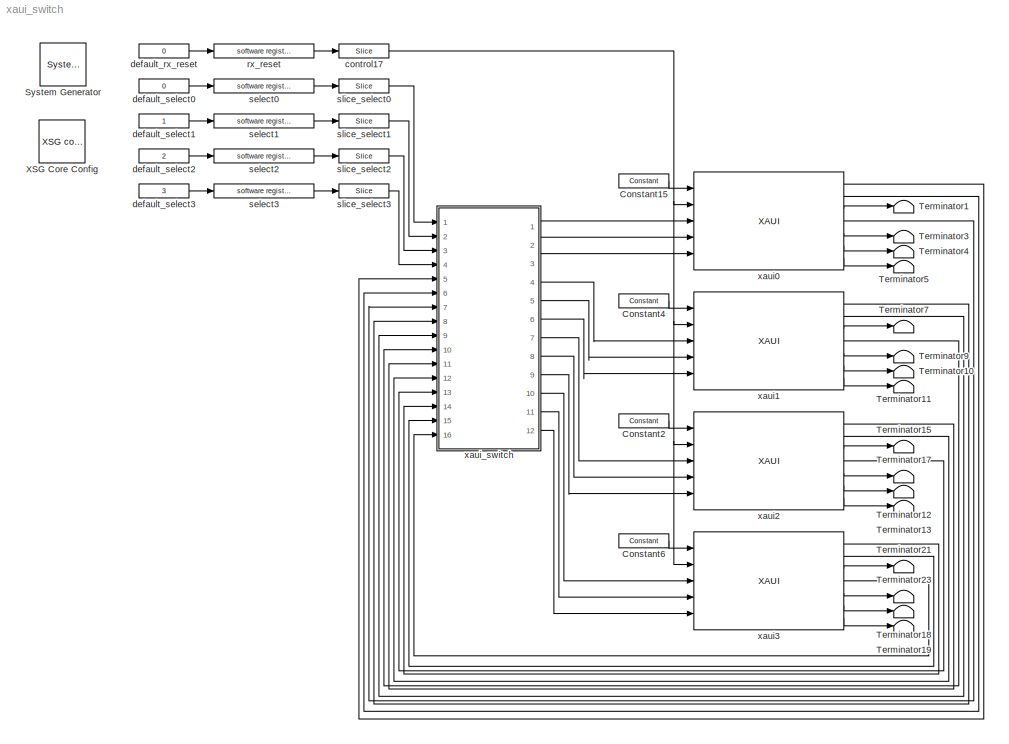
MODEL xaui_switch
KIND model
BLOCK [Reference]  System Generator  REF=xbsIndex_r4/ System Generator
  AttributesFormatString = System\\nGenerator
  FunctionWithSeparateData = off
  Ports = []
  RTWMemSecDataConstants = Inherit from model
  RTWMemSecDataInternal = Inherit from model
  RTWMemSecDataParameters = Inherit from model
  RTWMemSecFuncExecute = Inherit from model
  RTWMemSecFuncInitTerm = Inherit from model
  SID = 1
  ShowPortLabels = FromPortIcon
  SourceBlock = xbsIndex_r4/ System Generator
  SourceType = Xilinx System Generator Block
  SystemSampleTime = -1
  Tag = genX
  UserData = DataTag0
  UserDataPersistent = on
  block_type = sysgen
  block_version = 10.1.1
  clock_wrapper = Clock Enables
  core_generation = According to Block Masks
  dbl_ovrd = According to Block Masks
  dcm_input_clock_period = 100
  deprecated_control = off
  directory = ./xaui_loop/sysgen
  eval_field = 0
  has_advanced_control = 0
  incr_netlist = off
  infoedit = System Generator
  package = ff1136
  part = xc5vsx95t
  run_coregen = off
  sg_icon_stat = 46,43,-1,-1,red,beige,0,07734,right
  sg_mask_display = fprintf('','COMMENT: begin icon graphics');\npatch([0 46 46 0 ],[0 0 43 43 ],[0.93 0.92 0.86]);\npatch([11 4 14 4 11 22 25 28 40 30 21 14 23 14 21 30 40 28 25 22 11 ],[5 12 22 32 39 39 36 39 39 29 38 31 22 13 6 15 5 5 8 5 5 ],[0.6 0.2 0.25]);\nplot([0 46 46 0 0 ],[0 0 43 43 0 ]);\nfprintf('','COMMENT: end icon graphics');\nfprintf('','COMMENT: begin icon text');\nfprintf('','COMMENT: end icon text...<+5ch>
  sggui_pos = -1,-1,-1,-1
  simulink_period = 1
  speed = -1
  synthesis_tool = XST
  sysclk_period = 5
  testbench = off
  trim_vbits = Everywhere in SubSystem
  xilinxfamily = virtex5
BLOCK [Reference] Constant15  REF=xbsIndex_r4/Constant
  Ports = [0, 1]
  SID = 4
  SourceBlock = xbsIndex_r4/Constant
  SourceType = Xilinx Constant Block Block
  arith_type = Boolean
  bin_pt = 0
  block_type = constant
  block_version = 10.1.1
  carry = CIN
  const = 1
  dbl_ovrd = off
  dsp48_infoedit = The use of this block for DSP48 instructions is deprecated.  Please use the Opmode block.
  equ = P=C
  explicit_period = on
  has_advanced_control = 0
  inp1 = P
  inp2 = PCIN>>17
  n_bits = 1
  opr = +
  opselect = C
  period = 1
  sg_icon_stat = 50,14,0,1,white,blue,0,1c72b5be,right,
  sg_mask_display = fprintf('','COMMENT: begin icon graphics');\npatch([0 1 1 0 ],[0 0 1 1 ],[0.77 0.82 0.91]);\npatch([0.42 0.38 0.44 0.38 0.42 0.5 0.52 0.54 0.62 0.56 0.5 0.46 0.52 0.46 0.5 0.56 0.62 0.54 0.52 0.5 0.42 ],[0.142857 0.285714 0.5 0.714286 0.857143 0.857143 0.785714 0.857143 0.857143 0.642857 0.857143 0.714286 0.5 0.285714 0.142857 0.357143 0.142857 0.142857 0.214286 0.142857 0.142857 ],[0.98 0.96 0.92...<+206ch>  <repeated x4 — deduplicated; at blocks: Constant15, Constant2, Constant4, Constant6>
  sggui_pos = 20,20,400,346
BLOCK [Reference] Constant2  REF=xbsIndex_r4/Constant
  Ports = [0, 1]
  SID = 5
  SourceBlock = xbsIndex_r4/Constant
  SourceType = Xilinx Constant Block Block
  arith_type = Boolean
  bin_pt = 0
  block_type = constant
  block_version = 10.1.1
  carry = CIN
  const = 1
  dbl_ovrd = off
  dsp48_infoedit = The use of this block for DSP48 instructions is deprecated.  Please use the Opmode block.
  equ = P=C
  explicit_period = on
  has_advanced_control = 0
  inp1 = P
  inp2 = PCIN>>17
  n_bits = 1
  opr = +
  opselect = C
  period = 1
  sg_icon_stat = 50,14,0,1,white,blue,0,1c72b5be,right,
  sggui_pos = 20,20,400,346
BLOCK [Reference] Constant4  REF=xbsIndex_r4/Constant
  Ports = [0, 1]
  SID = 7
  SourceBlock = xbsIndex_r4/Constant
  SourceType = Xilinx Constant Block Block
  arith_type = Boolean
  bin_pt = 0
  block_type = constant
  block_version = 10.1.1
  carry = CIN
  const = 1
  dbl_ovrd = off
  dsp48_infoedit = The use of this block for DSP48 instructions is deprecated.  Please use the Opmode block.
  equ = P=C
  explicit_period = on
  has_advanced_control = 0
  inp1 = P
  inp2 = PCIN>>17
  n_bits = 1
  opr = +
  opselect = C
  period = 1
  sg_icon_stat = 50,14,0,1,white,blue,0,1c72b5be,right,
  sggui_pos = 20,20,400,346
BLOCK [Reference] Constant6  REF=xbsIndex_r4/Constant
  Ports = [0, 1]
  SID = 9
  SourceBlock = xbsIndex_r4/Constant
  SourceType = Xilinx Constant Block Block
  arith_type = Boolean
  bin_pt = 0
  block_type = constant
  block_version = 10.1.1
  carry = CIN
  const = 1
  dbl_ovrd = off
  dsp48_infoedit = The use of this block for DSP48 instructions is deprecated.  Please use the Opmode block.
  equ = P=C
  explicit_period = on
  has_advanced_control = 0
  inp1 = P
  inp2 = PCIN>>17
  n_bits = 1
  opr = +
  opselect = C
  period = 1
  sg_icon_stat = 50,14,0,1,white,blue,0,1c72b5be,right,
  sggui_pos = 20,20,400,346
BLOCK [Terminator] Terminator1
  SID = 39
BLOCK [Terminator] Terminator10
  SID = 40
BLOCK [Terminator] Terminator11
  SID = 41
BLOCK [Terminator] Terminator12
  SID = 42
BLOCK [Terminator] Terminator13
  SID = 43
BLOCK [Terminator] Terminator15
  SID = 45
BLOCK [Terminator] Terminator17
  SID = 47
BLOCK [Terminator] Terminator18
  SID = 48
BLOCK [Terminator] Terminator19
  SID = 49
BLOCK [Terminator] Terminator21
  SID = 52
BLOCK [Terminator] Terminator23
  SID = 54
BLOCK [Terminator] Terminator3
  SID = 55
BLOCK [Terminator] Terminator4
  SID = 56
BLOCK [Terminator] Terminator5
  SID = 57
BLOCK [Terminator] Terminator7
  SID = 59
BLOCK [Terminator] Terminator9
  SID = 61
BLOCK [Reference] XSG Core Config  REF=xps_library/XSG core config  (lib defined in mdl_00b5cec29cd0, mdl_02ab6ecaa3d1, +5 more)
  BEE2_ctrl_clk_src = sys_clk
  BEE2_usr_clk_src = sys_clk2x
  CORR_clk_src = sys_clk
  FunctionWithSeparateData = off
  Ports = []
  ROACH_clk_src = sys_clk2x
  RTWMemSecDataConstants = Inherit from model
  RTWMemSecDataInternal = Inherit from model
  RTWMemSecDataParameters = Inherit from model
  RTWMemSecFuncExecute = Inherit from model
  RTWMemSecFuncInitTerm = Inherit from model
  SID = 62
  ShowPortLabels = FromPortIcon
  SourceBlock = xps_library/XSG core config
  SourceType = xsg core config
  SystemSampleTime = -1
  Tag = xps:xsg
  clk_rate = 200
  clk_src = sys_clk2x
  gpio_clk_bit_index = 0
  gpio_clk_io_group = iBOB:sma
  hw_sys = ROACH:sx95t
  iBOB_clk_src = sys_clk2x
  ibob_linux = off
  mpc_type = powerpc440_ext
  sample_period = 1
  synthesis_tool = XST
BLOCK [Reference] control17  REF=xbsIndex_r4/Slice
  Ports = [1, 1]
  SID = 63
  SourceBlock = xbsIndex_r4/Slice
  SourceType = Xilinx Bit Slice Extractor Block
  base0 = LSB of Input
  base1 = MSB of Input
  bit0 = 0
  bit1 = 0
  block_type = slice
  block_version = 10.1.3
  boolean_output = on
  dbl_ovrd = off
  has_advanced_control = 0
  infoedit = Extracts a given range of bits from each input sample and presents it at the output.  The output type is ordinarily unsigned with binary point at zero, but can be Boolean when the slice is one bit wide.<P><P>Hardware notes: In hardware this block costs nothing.
  mode = Lower Bit Location + Width
  nbits = 1
  sg_icon_stat = 50,14,1,1,white,blue,0,1fd851a7,right,
  sg_mask_display = fprintf('','COMMENT: begin icon graphics');\npatch([0 1 1 0 ],[0 0 1 1 ],[0.77 0.82 0.91]);\npatch([0.42 0.38 0.44 0.38 0.42 0.5 0.52 0.54 0.62 0.56 0.5 0.46 0.52 0.46 0.5 0.56 0.62 0.54 0.52 0.5 0.42 ],[0.142857 0.285714 0.5 0.714286 0.857143 0.857143 0.785714 0.857143 0.857143 0.642857 0.857143 0.714286 0.5 0.285714 0.142857 0.357143 0.142857 0.142857 0.214286 0.142857 0.142857 ],[0.98 0.96 0.92...<+210ch>  <repeated x5 — deduplicated; at blocks: control17, slice_select0, slice_select1, slice_select2, slice_select3>
  sggui_pos = 20,20,449,376
BLOCK [Constant] default_rx_reset
  OutDataType = sfix(16)
  OutScaling = 2^0
  SID = 64
  SampleTime = 1
  Value = 0
BLOCK [Constant] default_select0
  OutDataType = sfix(16)
  OutScaling = 2^0
  SID = 270
  SampleTime = 1
  Value = 0
BLOCK [Constant] default_select1
  OutDataType = sfix(16)
  OutScaling = 2^0
  SID = 272
  SampleTime = 1
BLOCK [Constant] default_select2
  OutDataType = sfix(16)
  OutScaling = 2^0
  SID = 275
  SampleTime = 1
  Value = 2
BLOCK [Constant] default_select3
  OutDataType = sfix(16)
  OutScaling = 2^0
  SID = 276
  SampleTime = 1
  Value = 3
BLOCK [Reference] rx_reset  REF=xps_library/software register  (lib defined in mdl_00b5cec29cd0, mdl_02ab6ecaa3d1, +5 more)
  FunctionWithSeparateData = off
  Ports = [1, 1]
  RTWMemSecDataConstants = Inherit from model
  RTWMemSecDataInternal = Inherit from model
  RTWMemSecDataParameters = Inherit from model
  RTWMemSecFuncExecute = Inherit from model
  RTWMemSecFuncInitTerm = Inherit from model
  SID = 69
  ShowPortLabels = FromPortIcon
  SourceBlock = xps_library/software register
  SystemSampleTime = -1
  Tag = xps:sw_reg
  arith_type = Unsigned
  bin_pt = 0
  bitwidth = 32
  gw_name = xaui_switch_rx_reset_user_data_out
  io_dir = From Processor
  sample_period = 1
BLOCK [Reference] select0  REF=xps_library/software register  (lib defined in mdl_00b5cec29cd0, mdl_02ab6ecaa3d1, +5 more)
  FunctionWithSeparateData = off
  Ports = [1, 1]
  RTWMemSecDataConstants = Inherit from model
  RTWMemSecDataInternal = Inherit from model
  RTWMemSecDataParameters = Inherit from model
  RTWMemSecFuncExecute = Inherit from model
  RTWMemSecFuncInitTerm = Inherit from model
  SID = 271
  ShowPortLabels = FromPortIcon
  SourceBlock = xps_library/software register
  SystemSampleTime = -1
  Tag = xps:sw_reg
  arith_type = Unsigned
  bin_pt = 0
  bitwidth = 32
  gw_name = xaui_switch_rx_reset_user_data_out
  io_dir = From Processor
  sample_period = 1
BLOCK [Reference] select1  REF=xps_library/software register  (lib defined in mdl_00b5cec29cd0, mdl_02ab6ecaa3d1, +5 more)
  FunctionWithSeparateData = off
  Ports = [1, 1]
  RTWMemSecDataConstants = Inherit from model
  RTWMemSecDataInternal = Inherit from model
  RTWMemSecDataParameters = Inherit from model
  RTWMemSecFuncExecute = Inherit from model
  RTWMemSecFuncInitTerm = Inherit from model
  SID = 273
  ShowPortLabels = FromPortIcon
  SourceBlock = xps_library/software register
  SystemSampleTime = -1
  Tag = xps:sw_reg
  arith_type = Unsigned
  bin_pt = 0
  bitwidth = 32
  gw_name = xaui_switch_rx_reset_user_data_out
  io_dir = From Processor
  sample_period = 1
BLOCK [Reference] select2  REF=xps_library/software register  (lib defined in mdl_00b5cec29cd0, mdl_02ab6ecaa3d1, +5 more)
  FunctionWithSeparateData = off
  Ports = [1, 1]
  RTWMemSecDataConstants = Inherit from model
  RTWMemSecDataInternal = Inherit from model
  RTWMemSecDataParameters = Inherit from model
  RTWMemSecFuncExecute = Inherit from model
  RTWMemSecFuncInitTerm = Inherit from model
  SID = 277
  ShowPortLabels = FromPortIcon
  SourceBlock = xps_library/software register
  SystemSampleTime = -1
  Tag = xps:sw_reg
  arith_type = Unsigned
  bin_pt = 0
  bitwidth = 32
  gw_name = xaui_switch_rx_reset_user_data_out
  io_dir = From Processor
  sample_period = 1
BLOCK [Reference] select3  REF=xps_library/software register  (lib defined in mdl_00b5cec29cd0, mdl_02ab6ecaa3d1, +5 more)
  FunctionWithSeparateData = off
  Ports = [1, 1]
  RTWMemSecDataConstants = Inherit from model
  RTWMemSecDataInternal = Inherit from model
  RTWMemSecDataParameters = Inherit from model
  RTWMemSecFuncExecute = Inherit from model
  RTWMemSecFuncInitTerm = Inherit from model
  SID = 278
  ShowPortLabels = FromPortIcon
  SourceBlock = xps_library/software register
  SystemSampleTime = -1
  Tag = xps:sw_reg
  arith_type = Unsigned
  bin_pt = 0
  bitwidth = 32
  gw_name = xaui_switch_rx_reset_user_data_out
  io_dir = From Processor
  sample_period = 1
BLOCK [Reference] slice_select0  REF=xbsIndex_r4/Slice
  Ports = [1, 1]
  SID = 269
  SourceBlock = xbsIndex_r4/Slice
  SourceType = Xilinx Bit Slice Extractor Block
  base0 = LSB of Input
  base1 = MSB of Input
  bit0 = 0
  bit1 = 0
  block_type = slice
  block_version = 10.1.3
  boolean_output = off
  dbl_ovrd = off
  has_advanced_control = 0
  infoedit = Extracts a given range of bits from each input sample and presents it at the output.  The output type is ordinarily unsigned with binary point at zero, but can be Boolean when the slice is one bit wide.<br><br>Hardware notes: In hardware this block costs nothing.  <repeated x4 — deduplicated; at blocks: slice_select0, slice_select1, slice_select2, slice_select3>
  mode = Lower Bit Location + Width
  nbits = 2
  sg_icon_stat = 50,14,1,1,white,blue,0,1fd851a7,right,
  sggui_pos = 20,20,449,376
BLOCK [Reference] slice_select1  REF=xbsIndex_r4/Slice
  Ports = [1, 1]
  SID = 274
  SourceBlock = xbsIndex_r4/Slice
  SourceType = Xilinx Bit Slice Extractor Block
  base0 = LSB of Input
  base1 = MSB of Input
  bit0 = 0
  bit1 = 0
  block_type = slice
  block_version = 10.1.3
  boolean_output = off
  dbl_ovrd = off
  has_advanced_control = 0
  mode = Lower Bit Location + Width
  nbits = 2
  sg_icon_stat = 50,14,1,1,white,blue,0,1fd851a7,right,
  sggui_pos = 20,20,449,376
BLOCK [Reference] slice_select2  REF=xbsIndex_r4/Slice
  Ports = [1, 1]
  SID = 279
  SourceBlock = xbsIndex_r4/Slice
  SourceType = Xilinx Bit Slice Extractor Block
  base0 = LSB of Input
  base1 = MSB of Input
  bit0 = 0
  bit1 = 0
  block_type = slice
  block_version = 10.1.3
  boolean_output = off
  dbl_ovrd = off
  has_advanced_control = 0
  mode = Lower Bit Location + Width
  nbits = 2
  sg_icon_stat = 50,14,1,1,white,blue,0,1fd851a7,right,
  sggui_pos = 20,20,449,376
BLOCK [Reference] slice_select3  REF=xbsIndex_r4/Slice
  Ports = [1, 1]
  SID = 280
  SourceBlock = xbsIndex_r4/Slice
  SourceType = Xilinx Bit Slice Extractor Block
  base0 = LSB of Input
  base1 = MSB of Input
  bit0 = 0
  bit1 = 0
  block_type = slice
  block_version = 10.1.3
  boolean_output = off
  dbl_ovrd = off
  has_advanced_control = 0
  mode = Lower Bit Location + Width
  nbits = 2
  sg_icon_stat = 50,14,1,1,white,blue,0,1fd851a7,right,
  sggui_pos = 20,20,449,376
BLOCK [Reference] xaui0  REF=xps_library/XAUI  (lib defined in mdl_00b5cec29cd0, mdl_02ab6ecaa3d1, +5 more)
  FunctionWithSeparateData = off
  Ports = [5, 7]
  RTWMemSecDataConstants = Inherit from model
  RTWMemSecDataInternal = Inherit from model
  RTWMemSecDataParameters = Inherit from model
  RTWMemSecFuncExecute = Inherit from model
  RTWMemSecFuncInitTerm = Inherit from model
  SID = 70
  ShowPortLabels = FromPortIcon
  SourceBlock = xps_library/XAUI
  SourceType = xaui
  SystemSampleTime = -1
  Tag = xps:xaui
  demux = 1
  open_phy = on
  port = ROACH:0
  pre_emph = 3
  show_param = off
  swing = 800
BLOCK [Reference] xaui1  REF=xps_library/XAUI  (lib defined in mdl_00b5cec29cd0, mdl_02ab6ecaa3d1, +5 more)
  FunctionWithSeparateData = off
  Ports = [5, 7]
  RTWMemSecDataConstants = Inherit from model
  RTWMemSecDataInternal = Inherit from model
  RTWMemSecDataParameters = Inherit from model
  RTWMemSecFuncExecute = Inherit from model
  RTWMemSecFuncInitTerm = Inherit from model
  SID = 71
  ShowPortLabels = FromPortIcon
  SourceBlock = xps_library/XAUI
  SourceType = xaui
  SystemSampleTime = -1
  Tag = xps:xaui
  demux = 1
  open_phy = on
  port = ROACH:1
  pre_emph = 3
  show_param = off
  swing = 800
BLOCK [Reference] xaui2  REF=xps_library/XAUI  (lib defined in mdl_00b5cec29cd0, mdl_02ab6ecaa3d1, +5 more)
  FunctionWithSeparateData = off
  Ports = [5, 7]
  RTWMemSecDataConstants = Inherit from model
  RTWMemSecDataInternal = Inherit from model
  RTWMemSecDataParameters = Inherit from model
  RTWMemSecFuncExecute = Inherit from model
  RTWMemSecFuncInitTerm = Inherit from model
  SID = 72
  ShowPortLabels = FromPortIcon
  SourceBlock = xps_library/XAUI
  SourceType = xaui
  SystemSampleTime = -1
  Tag = xps:xaui
  demux = 1
  open_phy = on
  port = ROACH:2
  pre_emph = 3
  show_param = off
  swing = 800
BLOCK [Reference] xaui3  REF=xps_library/XAUI  (lib defined in mdl_00b5cec29cd0, mdl_02ab6ecaa3d1, +5 more)
  FunctionWithSeparateData = off
  Ports = [5, 7]
  RTWMemSecDataConstants = Inherit from model
  RTWMemSecDataInternal = Inherit from model
  RTWMemSecDataParameters = Inherit from model
  RTWMemSecFuncExecute = Inherit from model
  RTWMemSecFuncInitTerm = Inherit from model
  SID = 73
  ShowPortLabels = FromPortIcon
  SourceBlock = xps_library/XAUI
  SourceType = xaui
  SystemSampleTime = -1
  Tag = xps:xaui
  demux = 1
  open_phy = on
  port = ROACH:3
  pre_emph = 3
  show_param = off
  swing = 800
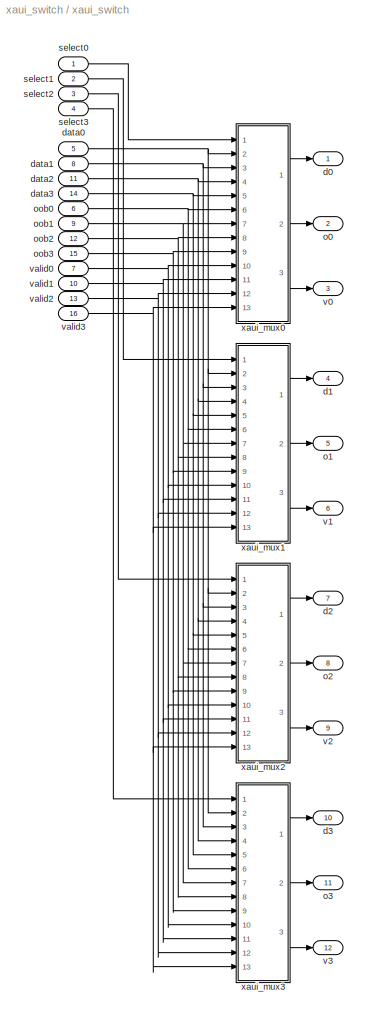
BLOCK [SubSystem] xaui_switch
  FunctionWithSeparateData = off
  MaskHideContents = off
  MinAlgLoopOccurrences = off
  Opaque = off
  Ports = [16, 12]
  PropExecContextOutsideSubsystem = off
  RTWSystemCode = Auto
  RequestExecContextInheritance = off
  SID = 282
BLOCK [Outport] xaui_switch/d0
  IconDisplay = Port number
  SID = 379
BLOCK [Outport] xaui_switch/d1
  IconDisplay = Port number
  Port = 4
  SID = 382
BLOCK [Outport] xaui_switch/d2
  IconDisplay = Port number
  Port = 7
  SID = 385
BLOCK [Outport] xaui_switch/d3
  IconDisplay = Port number
  Port = 10
  SID = 388
BLOCK [Inport] xaui_switch/data0
  IconDisplay = Port number
  Port = 5
  SID = 391
BLOCK [Inport] xaui_switch/data1
  IconDisplay = Port number
  Port = 8
  SID = 394
BLOCK [Inport] xaui_switch/data2
  IconDisplay = Port number
  Port = 11
  SID = 397
BLOCK [Inport] xaui_switch/data3
  IconDisplay = Port number
  Port = 14
  SID = 400
BLOCK [Outport] xaui_switch/o0
  IconDisplay = Port number
  Port = 2
  SID = 380
BLOCK [Outport] xaui_switch/o1
  IconDisplay = Port number
  Port = 5
  SID = 383
BLOCK [Outport] xaui_switch/o2
  IconDisplay = Port number
  Port = 8
  SID = 386
BLOCK [Outport] xaui_switch/o3
  IconDisplay = Port number
  Port = 11
  SID = 389
BLOCK [Inport] xaui_switch/oob0
  IconDisplay = Port number
  Port = 6
  SID = 392
BLOCK [Inport] xaui_switch/oob1
  IconDisplay = Port number
  Port = 9
  SID = 395
BLOCK [Inport] xaui_switch/oob2
  IconDisplay = Port number
  Port = 12
  SID = 398
BLOCK [Inport] xaui_switch/oob3
  IconDisplay = Port number
  Port = 15
  SID = 401
BLOCK [Inport] xaui_switch/select0
  IconDisplay = Port number
  SID = 283
BLOCK [Inport] xaui_switch/select1
  IconDisplay = Port number
  Port = 2
  SID = 284
BLOCK [Inport] xaui_switch/select2
  IconDisplay = Port number
  Port = 3
  SID = 285
BLOCK [Inport] xaui_switch/select3
  IconDisplay = Port number
  Port = 4
  SID = 286
BLOCK [Outport] xaui_switch/v0
  IconDisplay = Port number
  Port = 3
  SID = 381
BLOCK [Outport] xaui_switch/v1
  IconDisplay = Port number
  Port = 6
  SID = 384
BLOCK [Outport] xaui_switch/v2
  IconDisplay = Port number
  Port = 9
  SID = 387
BLOCK [Outport] xaui_switch/v3
  IconDisplay = Port number
  Port = 12
  SID = 390
BLOCK [Inport] xaui_switch/valid0
  IconDisplay = Port number
  Port = 7
  SID = 393
BLOCK [Inport] xaui_switch/valid1
  IconDisplay = Port number
  Port = 10
  SID = 396
BLOCK [Inport] xaui_switch/valid2
  IconDisplay = Port number
  Port = 13
  SID = 399
BLOCK [Inport] xaui_switch/valid3
  IconDisplay = Port number
  Port = 16
  SID = 402
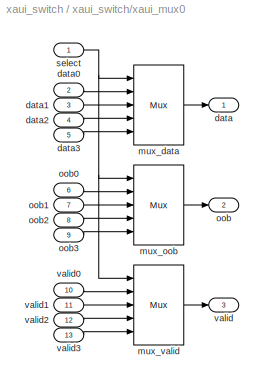
BLOCK [SubSystem] xaui_switch/xaui_mux0
  FunctionWithSeparateData = off
  MaskHideContents = off
  MinAlgLoopOccurrences = off
  Opaque = off
  Ports = [13, 3]
  PropExecContextOutsideSubsystem = off
  RTWSystemCode = Auto
  RequestExecContextInheritance = off
  SID = 299
BLOCK [Outport] xaui_switch/xaui_mux0/data
  IconDisplay = Port number
  SID = 316
BLOCK [Inport] xaui_switch/xaui_mux0/data0
  IconDisplay = Port number
  Port = 2
  SID = 301
BLOCK [Inport] xaui_switch/xaui_mux0/data1
  IconDisplay = Port number
  Port = 3
  SID = 302
BLOCK [Inport] xaui_switch/xaui_mux0/data2
  IconDisplay = Port number
  Port = 4
  SID = 303
BLOCK [Inport] xaui_switch/xaui_mux0/data3
  IconDisplay = Port number
  Port = 5
  SID = 304
BLOCK [Reference] xaui_switch/xaui_mux0/mux_data  REF=xbsIndex_r4/Mux
  Ports = [5, 1]
  SID = 313
  SourceBlock = xbsIndex_r4/Mux
  SourceType = Xilinx Bus Multiplexer Block
  arith_type = Unsigned
  bin_pt = 14
  block_type = mux
  block_version = 11.4
  dbl_ovrd = off
  en = off
  has_advanced_control = 0
  inputs = 4
  latency = 3
  n_bits = 16
  overflow = Wrap
  precision = Full
  quantization = Truncate
  sg_icon_stat = 50,80,5,1,white,blue,3,641f70b6,right,
  sg_list_contents = {'table'=>{'inputs'=>'popup(2|3|4|5|6|7|8|9|10|11|12|13|14|15|16|17|18|19|20|21|22|23|24|25|26|27|28|29|30|31|32)','userSelections'=>{'inputs'=>'4'}}}
  sg_mask_display = fprintf('','COMMENT: begin icon graphics');\npatch([0 1 1 0 ],[0 0.142857 0.857143 1 ],[0.77 0.82 0.91]);\npatch([0.22 0.06 0.3 0.06 0.22 0.48 0.56 0.64 0.92 0.7 0.48 0.32 0.56 0.32 0.48 0.7 0.92 0.64 0.56 0.48 0.22 ],[0.25 0.35 0.5 0.65 0.75 0.75 0.7 0.75 0.75 0.6125 0.75 0.65 0.5 0.35 0.25 0.3875 0.25 0.25 0.3 0.25 0.25 ],[0.98 0.96 0.92]);\nplot([0 1 1 0 0 ],[0 0.142857 0.857143 1 0 ]);\nfprint...<+393ch>  <repeated x12 — deduplicated; at blocks: mux_data, mux_oob, mux_valid>
  sggui_pos = -1,-1,-1,-1
  xl_area = [0,0,0,0,0,0,0]
  xl_use_area = off
BLOCK [Reference] xaui_switch/xaui_mux0/mux_oob  REF=xbsIndex_r4/Mux
  Ports = [5, 1]
  SID = 314
  SourceBlock = xbsIndex_r4/Mux
  SourceType = Xilinx Bus Multiplexer Block
  arith_type = Unsigned
  bin_pt = 14
  block_type = mux
  block_version = 11.4
  dbl_ovrd = off
  en = off
  has_advanced_control = 0
  inputs = 4
  latency = 3
  n_bits = 16
  overflow = Wrap
  precision = Full
  quantization = Truncate
  sg_icon_stat = 50,80,5,1,white,blue,3,641f70b6,right,
  sg_list_contents = {'table'=>{'inputs'=>'popup(2|3|4|5|6|7|8|9|10|11|12|13|14|15|16|17|18|19|20|21|22|23|24|25|26|27|28|29|30|31|32)','userSelections'=>{'inputs'=>'4'}}}
  sggui_pos = -1,-1,-1,-1
  xl_area = [0,0,0,0,0,0,0]
  xl_use_area = off
BLOCK [Reference] xaui_switch/xaui_mux0/mux_valid  REF=xbsIndex_r4/Mux
  Ports = [5, 1]
  SID = 315
  SourceBlock = xbsIndex_r4/Mux
  SourceType = Xilinx Bus Multiplexer Block
  arith_type = Unsigned
  bin_pt = 14
  block_type = mux
  block_version = 11.4
  dbl_ovrd = off
  en = off
  has_advanced_control = 0
  inputs = 4
  latency = 3
  n_bits = 16
  overflow = Wrap
  precision = Full
  quantization = Truncate
  sg_icon_stat = 50,80,5,1,white,blue,3,641f70b6,right,
  sg_list_contents = {'table'=>{'inputs'=>'popup(2|3|4|5|6|7|8|9|10|11|12|13|14|15|16|17|18|19|20|21|22|23|24|25|26|27|28|29|30|31|32)','userSelections'=>{'inputs'=>'4'}}}
  sggui_pos = -1,-1,-1,-1
  xl_area = [0,0,0,0,0,0,0]
  xl_use_area = off
BLOCK [Outport] xaui_switch/xaui_mux0/oob
  IconDisplay = Port number
  Port = 2
  SID = 317
BLOCK [Inport] xaui_switch/xaui_mux0/oob0
  IconDisplay = Port number
  Port = 6
  SID = 305
BLOCK [Inport] xaui_switch/xaui_mux0/oob1
  IconDisplay = Port number
  Port = 7
  SID = 306
BLOCK [Inport] xaui_switch/xaui_mux0/oob2
  IconDisplay = Port number
  Port = 8
  SID = 307
BLOCK [Inport] xaui_switch/xaui_mux0/oob3
  IconDisplay = Port number
  Port = 9
  SID = 308
BLOCK [Inport] xaui_switch/xaui_mux0/select
  IconDisplay = Port number
  SID = 300
BLOCK [Outport] xaui_switch/xaui_mux0/valid
  IconDisplay = Port number
  Port = 3
  SID = 318
BLOCK [Inport] xaui_switch/xaui_mux0/valid0
  IconDisplay = Port number
  Port = 10
  SID = 309
BLOCK [Inport] xaui_switch/xaui_mux0/valid1
  IconDisplay = Port number
  Port = 11
  SID = 310
BLOCK [Inport] xaui_switch/xaui_mux0/valid2
  IconDisplay = Port number
  Port = 12
  SID = 311
BLOCK [Inport] xaui_switch/xaui_mux0/valid3
  IconDisplay = Port number
  Port = 13
  SID = 312
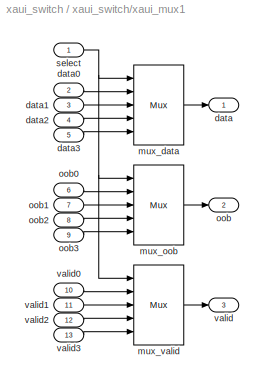
BLOCK [SubSystem] xaui_switch/xaui_mux1
  FunctionWithSeparateData = off
  MaskHideContents = off
  MinAlgLoopOccurrences = off
  Opaque = off
  Ports = [13, 3]
  PropExecContextOutsideSubsystem = off
  RTWSystemCode = Auto
  RequestExecContextInheritance = off
  SID = 319
BLOCK [Outport] xaui_switch/xaui_mux1/data
  IconDisplay = Port number
  SID = 336
BLOCK [Inport] xaui_switch/xaui_mux1/data0
  IconDisplay = Port number
  Port = 2
  SID = 321
BLOCK [Inport] xaui_switch/xaui_mux1/data1
  IconDisplay = Port number
  Port = 3
  SID = 322
BLOCK [Inport] xaui_switch/xaui_mux1/data2
  IconDisplay = Port number
  Port = 4
  SID = 323
BLOCK [Inport] xaui_switch/xaui_mux1/data3
  IconDisplay = Port number
  Port = 5
  SID = 324
BLOCK [Reference] xaui_switch/xaui_mux1/mux_data  REF=xbsIndex_r4/Mux
  Ports = [5, 1]
  SID = 333
  SourceBlock = xbsIndex_r4/Mux
  SourceType = Xilinx Bus Multiplexer Block
  arith_type = Unsigned
  bin_pt = 14
  block_type = mux
  block_version = 11.4
  dbl_ovrd = off
  en = off
  has_advanced_control = 0
  inputs = 4
  latency = 3
  n_bits = 16
  overflow = Wrap
  precision = Full
  quantization = Truncate
  sg_icon_stat = 50,80,5,1,white,blue,3,641f70b6,right,
  sg_list_contents = {'table'=>{'inputs'=>'popup(2|3|4|5|6|7|8|9|10|11|12|13|14|15|16|17|18|19|20|21|22|23|24|25|26|27|28|29|30|31|32)','userSelections'=>{'inputs'=>'4'}}}
  sggui_pos = -1,-1,-1,-1
  xl_area = [0,0,0,0,0,0,0]
  xl_use_area = off
BLOCK [Reference] xaui_switch/xaui_mux1/mux_oob  REF=xbsIndex_r4/Mux
  Ports = [5, 1]
  SID = 334
  SourceBlock = xbsIndex_r4/Mux
  SourceType = Xilinx Bus Multiplexer Block
  arith_type = Unsigned
  bin_pt = 14
  block_type = mux
  block_version = 11.4
  dbl_ovrd = off
  en = off
  has_advanced_control = 0
  inputs = 4
  latency = 3
  n_bits = 16
  overflow = Wrap
  precision = Full
  quantization = Truncate
  sg_icon_stat = 50,80,5,1,white,blue,3,641f70b6,right,
  sg_list_contents = {'table'=>{'inputs'=>'popup(2|3|4|5|6|7|8|9|10|11|12|13|14|15|16|17|18|19|20|21|22|23|24|25|26|27|28|29|30|31|32)','userSelections'=>{'inputs'=>'4'}}}
  sggui_pos = -1,-1,-1,-1
  xl_area = [0,0,0,0,0,0,0]
  xl_use_area = off
BLOCK [Reference] xaui_switch/xaui_mux1/mux_valid  REF=xbsIndex_r4/Mux
  Ports = [5, 1]
  SID = 335
  SourceBlock = xbsIndex_r4/Mux
  SourceType = Xilinx Bus Multiplexer Block
  arith_type = Unsigned
  bin_pt = 14
  block_type = mux
  block_version = 11.4
  dbl_ovrd = off
  en = off
  has_advanced_control = 0
  inputs = 4
  latency = 3
  n_bits = 16
  overflow = Wrap
  precision = Full
  quantization = Truncate
  sg_icon_stat = 50,80,5,1,white,blue,3,641f70b6,right,
  sg_list_contents = {'table'=>{'inputs'=>'popup(2|3|4|5|6|7|8|9|10|11|12|13|14|15|16|17|18|19|20|21|22|23|24|25|26|27|28|29|30|31|32)','userSelections'=>{'inputs'=>'4'}}}
  sggui_pos = -1,-1,-1,-1
  xl_area = [0,0,0,0,0,0,0]
  xl_use_area = off
BLOCK [Outport] xaui_switch/xaui_mux1/oob
  IconDisplay = Port number
  Port = 2
  SID = 337
BLOCK [Inport] xaui_switch/xaui_mux1/oob0
  IconDisplay = Port number
  Port = 6
  SID = 325
BLOCK [Inport] xaui_switch/xaui_mux1/oob1
  IconDisplay = Port number
  Port = 7
  SID = 326
BLOCK [Inport] xaui_switch/xaui_mux1/oob2
  IconDisplay = Port number
  Port = 8
  SID = 327
BLOCK [Inport] xaui_switch/xaui_mux1/oob3
  IconDisplay = Port number
  Port = 9
  SID = 328
BLOCK [Inport] xaui_switch/xaui_mux1/select
  IconDisplay = Port number
  SID = 320
BLOCK [Outport] xaui_switch/xaui_mux1/valid
  IconDisplay = Port number
  Port = 3
  SID = 338
BLOCK [Inport] xaui_switch/xaui_mux1/valid0
  IconDisplay = Port number
  Port = 10
  SID = 329
BLOCK [Inport] xaui_switch/xaui_mux1/valid1
  IconDisplay = Port number
  Port = 11
  SID = 330
BLOCK [Inport] xaui_switch/xaui_mux1/valid2
  IconDisplay = Port number
  Port = 12
  SID = 331
BLOCK [Inport] xaui_switch/xaui_mux1/valid3
  IconDisplay = Port number
  Port = 13
  SID = 332
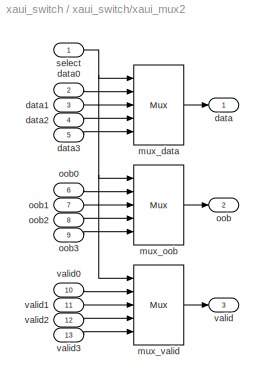
BLOCK [SubSystem] xaui_switch/xaui_mux2
  FunctionWithSeparateData = off
  MaskHideContents = off
  MinAlgLoopOccurrences = off
  Opaque = off
  Ports = [13, 3]
  PropExecContextOutsideSubsystem = off
  RTWSystemCode = Auto
  RequestExecContextInheritance = off
  SID = 339
BLOCK [Outport] xaui_switch/xaui_mux2/data
  IconDisplay = Port number
  SID = 356
BLOCK [Inport] xaui_switch/xaui_mux2/data0
  IconDisplay = Port number
  Port = 2
  SID = 341
BLOCK [Inport] xaui_switch/xaui_mux2/data1
  IconDisplay = Port number
  Port = 3
  SID = 342
BLOCK [Inport] xaui_switch/xaui_mux2/data2
  IconDisplay = Port number
  Port = 4
  SID = 343
BLOCK [Inport] xaui_switch/xaui_mux2/data3
  IconDisplay = Port number
  Port = 5
  SID = 344
BLOCK [Reference] xaui_switch/xaui_mux2/mux_data  REF=xbsIndex_r4/Mux
  Ports = [5, 1]
  SID = 353
  SourceBlock = xbsIndex_r4/Mux
  SourceType = Xilinx Bus Multiplexer Block
  arith_type = Unsigned
  bin_pt = 14
  block_type = mux
  block_version = 11.4
  dbl_ovrd = off
  en = off
  has_advanced_control = 0
  inputs = 4
  latency = 3
  n_bits = 16
  overflow = Wrap
  precision = Full
  quantization = Truncate
  sg_icon_stat = 50,80,5,1,white,blue,3,641f70b6,right,
  sg_list_contents = {'table'=>{'inputs'=>'popup(2|3|4|5|6|7|8|9|10|11|12|13|14|15|16|17|18|19|20|21|22|23|24|25|26|27|28|29|30|31|32)','userSelections'=>{'inputs'=>'4'}}}
  sggui_pos = -1,-1,-1,-1
  xl_area = [0,0,0,0,0,0,0]
  xl_use_area = off
BLOCK [Reference] xaui_switch/xaui_mux2/mux_oob  REF=xbsIndex_r4/Mux
  Ports = [5, 1]
  SID = 354
  SourceBlock = xbsIndex_r4/Mux
  SourceType = Xilinx Bus Multiplexer Block
  arith_type = Unsigned
  bin_pt = 14
  block_type = mux
  block_version = 11.4
  dbl_ovrd = off
  en = off
  has_advanced_control = 0
  inputs = 4
  latency = 3
  n_bits = 16
  overflow = Wrap
  precision = Full
  quantization = Truncate
  sg_icon_stat = 50,80,5,1,white,blue,3,641f70b6,right,
  sg_list_contents = {'table'=>{'inputs'=>'popup(2|3|4|5|6|7|8|9|10|11|12|13|14|15|16|17|18|19|20|21|22|23|24|25|26|27|28|29|30|31|32)','userSelections'=>{'inputs'=>'4'}}}
  sggui_pos = -1,-1,-1,-1
  xl_area = [0,0,0,0,0,0,0]
  xl_use_area = off
BLOCK [Reference] xaui_switch/xaui_mux2/mux_valid  REF=xbsIndex_r4/Mux
  Ports = [5, 1]
  SID = 355
  SourceBlock = xbsIndex_r4/Mux
  SourceType = Xilinx Bus Multiplexer Block
  arith_type = Unsigned
  bin_pt = 14
  block_type = mux
  block_version = 11.4
  dbl_ovrd = off
  en = off
  has_advanced_control = 0
  inputs = 4
  latency = 3
  n_bits = 16
  overflow = Wrap
  precision = Full
  quantization = Truncate
  sg_icon_stat = 50,80,5,1,white,blue,3,641f70b6,right,
  sg_list_contents = {'table'=>{'inputs'=>'popup(2|3|4|5|6|7|8|9|10|11|12|13|14|15|16|17|18|19|20|21|22|23|24|25|26|27|28|29|30|31|32)','userSelections'=>{'inputs'=>'4'}}}
  sggui_pos = -1,-1,-1,-1
  xl_area = [0,0,0,0,0,0,0]
  xl_use_area = off
BLOCK [Outport] xaui_switch/xaui_mux2/oob
  IconDisplay = Port number
  Port = 2
  SID = 357
BLOCK [Inport] xaui_switch/xaui_mux2/oob0
  IconDisplay = Port number
  Port = 6
  SID = 345
BLOCK [Inport] xaui_switch/xaui_mux2/oob1
  IconDisplay = Port number
  Port = 7
  SID = 346
BLOCK [Inport] xaui_switch/xaui_mux2/oob2
  IconDisplay = Port number
  Port = 8
  SID = 347
BLOCK [Inport] xaui_switch/xaui_mux2/oob3
  IconDisplay = Port number
  Port = 9
  SID = 348
BLOCK [Inport] xaui_switch/xaui_mux2/select
  IconDisplay = Port number
  SID = 340
BLOCK [Outport] xaui_switch/xaui_mux2/valid
  IconDisplay = Port number
  Port = 3
  SID = 358
BLOCK [Inport] xaui_switch/xaui_mux2/valid0
  IconDisplay = Port number
  Port = 10
  SID = 349
BLOCK [Inport] xaui_switch/xaui_mux2/valid1
  IconDisplay = Port number
  Port = 11
  SID = 350
BLOCK [Inport] xaui_switch/xaui_mux2/valid2
  IconDisplay = Port number
  Port = 12
  SID = 351
BLOCK [Inport] xaui_switch/xaui_mux2/valid3
  IconDisplay = Port number
  Port = 13
  SID = 352
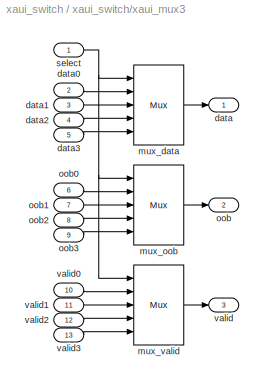
BLOCK [SubSystem] xaui_switch/xaui_mux3
  FunctionWithSeparateData = off
  MaskHideContents = off
  MinAlgLoopOccurrences = off
  Opaque = off
  Ports = [13, 3]
  PropExecContextOutsideSubsystem = off
  RTWSystemCode = Auto
  RequestExecContextInheritance = off
  SID = 359
BLOCK [Outport] xaui_switch/xaui_mux3/data
  IconDisplay = Port number
  SID = 376
BLOCK [Inport] xaui_switch/xaui_mux3/data0
  IconDisplay = Port number
  Port = 2
  SID = 361
BLOCK [Inport] xaui_switch/xaui_mux3/data1
  IconDisplay = Port number
  Port = 3
  SID = 362
BLOCK [Inport] xaui_switch/xaui_mux3/data2
  IconDisplay = Port number
  Port = 4
  SID = 363
BLOCK [Inport] xaui_switch/xaui_mux3/data3
  IconDisplay = Port number
  Port = 5
  SID = 364
BLOCK [Reference] xaui_switch/xaui_mux3/mux_data  REF=xbsIndex_r4/Mux
  Ports = [5, 1]
  SID = 373
  SourceBlock = xbsIndex_r4/Mux
  SourceType = Xilinx Bus Multiplexer Block
  arith_type = Unsigned
  bin_pt = 14
  block_type = mux
  block_version = 11.4
  dbl_ovrd = off
  en = off
  has_advanced_control = 0
  inputs = 4
  latency = 3
  n_bits = 16
  overflow = Wrap
  precision = Full
  quantization = Truncate
  sg_icon_stat = 50,80,5,1,white,blue,3,641f70b6,right,
  sg_list_contents = {'table'=>{'inputs'=>'popup(2|3|4|5|6|7|8|9|10|11|12|13|14|15|16|17|18|19|20|21|22|23|24|25|26|27|28|29|30|31|32)','userSelections'=>{'inputs'=>'4'}}}
  sggui_pos = -1,-1,-1,-1
  xl_area = [0,0,0,0,0,0,0]
  xl_use_area = off
BLOCK [Reference] xaui_switch/xaui_mux3/mux_oob  REF=xbsIndex_r4/Mux
  Ports = [5, 1]
  SID = 374
  SourceBlock = xbsIndex_r4/Mux
  SourceType = Xilinx Bus Multiplexer Block
  arith_type = Unsigned
  bin_pt = 14
  block_type = mux
  block_version = 11.4
  dbl_ovrd = off
  en = off
  has_advanced_control = 0
  inputs = 4
  latency = 3
  n_bits = 16
  overflow = Wrap
  precision = Full
  quantization = Truncate
  sg_icon_stat = 50,80,5,1,white,blue,3,641f70b6,right,
  sg_list_contents = {'table'=>{'inputs'=>'popup(2|3|4|5|6|7|8|9|10|11|12|13|14|15|16|17|18|19|20|21|22|23|24|25|26|27|28|29|30|31|32)','userSelections'=>{'inputs'=>'4'}}}
  sggui_pos = -1,-1,-1,-1
  xl_area = [0,0,0,0,0,0,0]
  xl_use_area = off
BLOCK [Reference] xaui_switch/xaui_mux3/mux_valid  REF=xbsIndex_r4/Mux
  Ports = [5, 1]
  SID = 375
  SourceBlock = xbsIndex_r4/Mux
  SourceType = Xilinx Bus Multiplexer Block
  arith_type = Unsigned
  bin_pt = 14
  block_type = mux
  block_version = 11.4
  dbl_ovrd = off
  en = off
  has_advanced_control = 0
  inputs = 4
  latency = 3
  n_bits = 16
  overflow = Wrap
  precision = Full
  quantization = Truncate
  sg_icon_stat = 50,80,5,1,white,blue,3,641f70b6,right,
  sg_list_contents = {'table'=>{'inputs'=>'popup(2|3|4|5|6|7|8|9|10|11|12|13|14|15|16|17|18|19|20|21|22|23|24|25|26|27|28|29|30|31|32)','userSelections'=>{'inputs'=>'4'}}}
  sggui_pos = -1,-1,-1,-1
  xl_area = [0,0,0,0,0,0,0]
  xl_use_area = off
BLOCK [Outport] xaui_switch/xaui_mux3/oob
  IconDisplay = Port number
  Port = 2
  SID = 377
BLOCK [Inport] xaui_switch/xaui_mux3/oob0
  IconDisplay = Port number
  Port = 6
  SID = 365
BLOCK [Inport] xaui_switch/xaui_mux3/oob1
  IconDisplay = Port number
  Port = 7
  SID = 366
BLOCK [Inport] xaui_switch/xaui_mux3/oob2
  IconDisplay = Port number
  Port = 8
  SID = 367
BLOCK [Inport] xaui_switch/xaui_mux3/oob3
  IconDisplay = Port number
  Port = 9
  SID = 368
BLOCK [Inport] xaui_switch/xaui_mux3/select
  IconDisplay = Port number
  SID = 360
BLOCK [Outport] xaui_switch/xaui_mux3/valid
  IconDisplay = Port number
  Port = 3
  SID = 378
BLOCK [Inport] xaui_switch/xaui_mux3/valid0
  IconDisplay = Port number
  Port = 10
  SID = 369
BLOCK [Inport] xaui_switch/xaui_mux3/valid1
  IconDisplay = Port number
  Port = 11
  SID = 370
BLOCK [Inport] xaui_switch/xaui_mux3/valid2
  IconDisplay = Port number
  Port = 12
  SID = 371
BLOCK [Inport] xaui_switch/xaui_mux3/valid3
  IconDisplay = Port number
  Port = 13
  SID = 372
LINE Constant15:1 -> xaui0:1
LINE Constant2:1 -> xaui2:1
LINE Constant4:1 -> xaui1:1
LINE Constant6:1 -> xaui3:1
NET control17:1 -> xaui0:2, xaui1:2, xaui2:2, xaui3:2
LINE default_rx_reset:1 -> rx_reset:1
LINE default_select0:1 -> select0:1
LINE default_select1:1 -> select1:1
LINE default_select2:1 -> select2:1
LINE default_select3:1 -> select3:1
LINE rx_reset:1 -> control17:1
LINE select0:1 -> slice_select0:1
LINE select1:1 -> slice_select1:1
LINE select2:1 -> slice_select2:1
LINE select3:1 -> slice_select3:1
LINE slice_select0:1 -> xaui_switch:1
LINE slice_select1:1 -> xaui_switch:2
LINE slice_select2:1 -> xaui_switch:3
LINE slice_select3:1 -> xaui_switch:4
LINE xaui0:1 -> xaui_switch:5
LINE xaui0:2 -> xaui_switch:6
LINE xaui0:3 -> Terminator1:1
LINE xaui0:4 -> xaui_switch:7
LINE xaui0:5 -> Terminator3:1
LINE xaui0:6 -> Terminator4:1
LINE xaui0:7 -> Terminator5:1
LINE xaui1:1 -> xaui_switch:8
LINE xaui1:2 -> xaui_switch:9
LINE xaui1:3 -> Terminator7:1
LINE xaui1:4 -> xaui_switch:10
LINE xaui1:5 -> Terminator9:1
LINE xaui1:6 -> Terminator10:1
LINE xaui1:7 -> Terminator11:1
LINE xaui2:1 -> xaui_switch:11
LINE xaui2:2 -> xaui_switch:12
LINE xaui2:3 -> Terminator15:1
LINE xaui2:4 -> xaui_switch:13
LINE xaui2:5 -> Terminator17:1
LINE xaui2:6 -> Terminator12:1
LINE xaui2:7 -> Terminator13:1
LINE xaui3:1 -> xaui_switch:14
LINE xaui3:2 -> xaui_switch:15
LINE xaui3:3 -> Terminator21:1
LINE xaui3:4 -> xaui_switch:16
LINE xaui3:5 -> Terminator23:1
LINE xaui3:6 -> Terminator18:1
LINE xaui3:7 -> Terminator19:1
NET xaui_switch/data0:1 -> xaui_switch/xaui_mux0:2, xaui_switch/xaui_mux1:2, xaui_switch/xaui_mux2:2, xaui_switch/xaui_mux3:2
NET xaui_switch/data1:1 -> xaui_switch/xaui_mux0:3, xaui_switch/xaui_mux1:3, xaui_switch/xaui_mux2:3, xaui_switch/xaui_mux3:3
NET xaui_switch/data2:1 -> xaui_switch/xaui_mux0:4, xaui_switch/xaui_mux1:4, xaui_switch/xaui_mux2:4, xaui_switch/xaui_mux3:4
NET xaui_switch/data3:1 -> xaui_switch/xaui_mux0:5, xaui_switch/xaui_mux1:5, xaui_switch/xaui_mux2:5, xaui_switch/xaui_mux3:5
NET xaui_switch/oob0:1 -> xaui_switch/xaui_mux0:6, xaui_switch/xaui_mux1:6, xaui_switch/xaui_mux2:6, xaui_switch/xaui_mux3:6
NET xaui_switch/oob1:1 -> xaui_switch/xaui_mux0:7, xaui_switch/xaui_mux1:7, xaui_switch/xaui_mux2:7, xaui_switch/xaui_mux3:7
NET xaui_switch/oob2:1 -> xaui_switch/xaui_mux0:8, xaui_switch/xaui_mux1:8, xaui_switch/xaui_mux2:8, xaui_switch/xaui_mux3:8
NET xaui_switch/oob3:1 -> xaui_switch/xaui_mux0:9, xaui_switch/xaui_mux1:9, xaui_switch/xaui_mux2:9, xaui_switch/xaui_mux3:9
LINE xaui_switch/select0:1 -> xaui_switch/xaui_mux0:1
LINE xaui_switch/select1:1 -> xaui_switch/xaui_mux1:1
LINE xaui_switch/select2:1 -> xaui_switch/xaui_mux2:1
LINE xaui_switch/select3:1 -> xaui_switch/xaui_mux3:1
NET xaui_switch/valid0:1 -> xaui_switch/xaui_mux0:10, xaui_switch/xaui_mux1:10, xaui_switch/xaui_mux2:10, xaui_switch/xaui_mux3:10
NET xaui_switch/valid1:1 -> xaui_switch/xaui_mux0:11, xaui_switch/xaui_mux1:11, xaui_switch/xaui_mux2:11, xaui_switch/xaui_mux3:11
NET xaui_switch/valid2:1 -> xaui_switch/xaui_mux0:12, xaui_switch/xaui_mux1:12, xaui_switch/xaui_mux2:12, xaui_switch/xaui_mux3:12
NET xaui_switch/valid3:1 -> xaui_switch/xaui_mux0:13, xaui_switch/xaui_mux1:13, xaui_switch/xaui_mux2:13, xaui_switch/xaui_mux3:13
LINE xaui_switch/xaui_mux0/data0:1 -> xaui_switch/xaui_mux0/mux_data:2
LINE xaui_switch/xaui_mux0/data1:1 -> xaui_switch/xaui_mux0/mux_data:3
LINE xaui_switch/xaui_mux0/data2:1 -> xaui_switch/xaui_mux0/mux_data:4
LINE xaui_switch/xaui_mux0/data3:1 -> xaui_switch/xaui_mux0/mux_data:5
LINE xaui_switch/xaui_mux0/mux_data:1 -> xaui_switch/xaui_mux0/data:1
LINE xaui_switch/xaui_mux0/mux_oob:1 -> xaui_switch/xaui_mux0/oob:1
LINE xaui_switch/xaui_mux0/mux_valid:1 -> xaui_switch/xaui_mux0/valid:1
LINE xaui_switch/xaui_mux0/oob0:1 -> xaui_switch/xaui_mux0/mux_oob:2
LINE xaui_switch/xaui_mux0/oob1:1 -> xaui_switch/xaui_mux0/mux_oob:3
LINE xaui_switch/xaui_mux0/oob2:1 -> xaui_switch/xaui_mux0/mux_oob:4
LINE xaui_switch/xaui_mux0/oob3:1 -> xaui_switch/xaui_mux0/mux_oob:5
NET xaui_switch/xaui_mux0/select:1 -> xaui_switch/xaui_mux0/mux_data:1, xaui_switch/xaui_mux0/mux_oob:1, xaui_switch/xaui_mux0/mux_valid:1
LINE xaui_switch/xaui_mux0/valid0:1 -> xaui_switch/xaui_mux0/mux_valid:2
LINE xaui_switch/xaui_mux0/valid1:1 -> xaui_switch/xaui_mux0/mux_valid:3
LINE xaui_switch/xaui_mux0/valid2:1 -> xaui_switch/xaui_mux0/mux_valid:4
LINE xaui_switch/xaui_mux0/valid3:1 -> xaui_switch/xaui_mux0/mux_valid:5
LINE xaui_switch/xaui_mux0:1 -> xaui_switch/d0:1
LINE xaui_switch/xaui_mux0:2 -> xaui_switch/o0:1
LINE xaui_switch/xaui_mux0:3 -> xaui_switch/v0:1
LINE xaui_switch/xaui_mux1/data0:1 -> xaui_switch/xaui_mux1/mux_data:2
LINE xaui_switch/xaui_mux1/data1:1 -> xaui_switch/xaui_mux1/mux_data:3
LINE xaui_switch/xaui_mux1/data2:1 -> xaui_switch/xaui_mux1/mux_data:4
LINE xaui_switch/xaui_mux1/data3:1 -> xaui_switch/xaui_mux1/mux_data:5
LINE xaui_switch/xaui_mux1/mux_data:1 -> xaui_switch/xaui_mux1/data:1
LINE xaui_switch/xaui_mux1/mux_oob:1 -> xaui_switch/xaui_mux1/oob:1
LINE xaui_switch/xaui_mux1/mux_valid:1 -> xaui_switch/xaui_mux1/valid:1
LINE xaui_switch/xaui_mux1/oob0:1 -> xaui_switch/xaui_mux1/mux_oob:2
LINE xaui_switch/xaui_mux1/oob1:1 -> xaui_switch/xaui_mux1/mux_oob:3
LINE xaui_switch/xaui_mux1/oob2:1 -> xaui_switch/xaui_mux1/mux_oob:4
LINE xaui_switch/xaui_mux1/oob3:1 -> xaui_switch/xaui_mux1/mux_oob:5
NET xaui_switch/xaui_mux1/select:1 -> xaui_switch/xaui_mux1/mux_data:1, xaui_switch/xaui_mux1/mux_oob:1, xaui_switch/xaui_mux1/mux_valid:1
LINE xaui_switch/xaui_mux1/valid0:1 -> xaui_switch/xaui_mux1/mux_valid:2
LINE xaui_switch/xaui_mux1/valid1:1 -> xaui_switch/xaui_mux1/mux_valid:3
LINE xaui_switch/xaui_mux1/valid2:1 -> xaui_switch/xaui_mux1/mux_valid:4
LINE xaui_switch/xaui_mux1/valid3:1 -> xaui_switch/xaui_mux1/mux_valid:5
LINE xaui_switch/xaui_mux1:1 -> xaui_switch/d1:1
LINE xaui_switch/xaui_mux1:2 -> xaui_switch/o1:1
LINE xaui_switch/xaui_mux1:3 -> xaui_switch/v1:1
LINE xaui_switch/xaui_mux2/data0:1 -> xaui_switch/xaui_mux2/mux_data:2
LINE xaui_switch/xaui_mux2/data1:1 -> xaui_switch/xaui_mux2/mux_data:3
LINE xaui_switch/xaui_mux2/data2:1 -> xaui_switch/xaui_mux2/mux_data:4
LINE xaui_switch/xaui_mux2/data3:1 -> xaui_switch/xaui_mux2/mux_data:5
LINE xaui_switch/xaui_mux2/mux_data:1 -> xaui_switch/xaui_mux2/data:1
LINE xaui_switch/xaui_mux2/mux_oob:1 -> xaui_switch/xaui_mux2/oob:1
LINE xaui_switch/xaui_mux2/mux_valid:1 -> xaui_switch/xaui_mux2/valid:1
LINE xaui_switch/xaui_mux2/oob0:1 -> xaui_switch/xaui_mux2/mux_oob:2
LINE xaui_switch/xaui_mux2/oob1:1 -> xaui_switch/xaui_mux2/mux_oob:3
LINE xaui_switch/xaui_mux2/oob2:1 -> xaui_switch/xaui_mux2/mux_oob:4
LINE xaui_switch/xaui_mux2/oob3:1 -> xaui_switch/xaui_mux2/mux_oob:5
NET xaui_switch/xaui_mux2/select:1 -> xaui_switch/xaui_mux2/mux_data:1, xaui_switch/xaui_mux2/mux_oob:1, xaui_switch/xaui_mux2/mux_valid:1
LINE xaui_switch/xaui_mux2/valid0:1 -> xaui_switch/xaui_mux2/mux_valid:2
LINE xaui_switch/xaui_mux2/valid1:1 -> xaui_switch/xaui_mux2/mux_valid:3
LINE xaui_switch/xaui_mux2/valid2:1 -> xaui_switch/xaui_mux2/mux_valid:4
LINE xaui_switch/xaui_mux2/valid3:1 -> xaui_switch/xaui_mux2/mux_valid:5
LINE xaui_switch/xaui_mux2:1 -> xaui_switch/d2:1
LINE xaui_switch/xaui_mux2:2 -> xaui_switch/o2:1
LINE xaui_switch/xaui_mux2:3 -> xaui_switch/v2:1
LINE xaui_switch/xaui_mux3/data0:1 -> xaui_switch/xaui_mux3/mux_data:2
LINE xaui_switch/xaui_mux3/data1:1 -> xaui_switch/xaui_mux3/mux_data:3
LINE xaui_switch/xaui_mux3/data2:1 -> xaui_switch/xaui_mux3/mux_data:4
LINE xaui_switch/xaui_mux3/data3:1 -> xaui_switch/xaui_mux3/mux_data:5
LINE xaui_switch/xaui_mux3/mux_data:1 -> xaui_switch/xaui_mux3/data:1
LINE xaui_switch/xaui_mux3/mux_oob:1 -> xaui_switch/xaui_mux3/oob:1
LINE xaui_switch/xaui_mux3/mux_valid:1 -> xaui_switch/xaui_mux3/valid:1
LINE xaui_switch/xaui_mux3/oob0:1 -> xaui_switch/xaui_mux3/mux_oob:2
LINE xaui_switch/xaui_mux3/oob1:1 -> xaui_switch/xaui_mux3/mux_oob:3
LINE xaui_switch/xaui_mux3/oob2:1 -> xaui_switch/xaui_mux3/mux_oob:4
LINE xaui_switch/xaui_mux3/oob3:1 -> xaui_switch/xaui_mux3/mux_oob:5
NET xaui_switch/xaui_mux3/select:1 -> xaui_switch/xaui_mux3/mux_data:1, xaui_switch/xaui_mux3/mux_oob:1, xaui_switch/xaui_mux3/mux_valid:1
LINE xaui_switch/xaui_mux3/valid0:1 -> xaui_switch/xaui_mux3/mux_valid:2
LINE xaui_switch/xaui_mux3/valid1:1 -> xaui_switch/xaui_mux3/mux_valid:3
LINE xaui_switch/xaui_mux3/valid2:1 -> xaui_switch/xaui_mux3/mux_valid:4
LINE xaui_switch/xaui_mux3/valid3:1 -> xaui_switch/xaui_mux3/mux_valid:5
LINE xaui_switch/xaui_mux3:1 -> xaui_switch/d3:1
LINE xaui_switch/xaui_mux3:2 -> xaui_switch/o3:1
LINE xaui_switch/xaui_mux3:3 -> xaui_switch/v3:1
LINE xaui_switch:1 -> xaui0:3
LINE xaui_switch:10 -> xaui3:3
LINE xaui_switch:11 -> xaui3:4
LINE xaui_switch:12 -> xaui3:5
LINE xaui_switch:2 -> xaui0:4
LINE xaui_switch:3 -> xaui0:5
LINE xaui_switch:4 -> xaui1:3
LINE xaui_switch:5 -> xaui1:4
LINE xaui_switch:6 -> xaui1:5
LINE xaui_switch:7 -> xaui2:3
LINE xaui_switch:8 -> xaui2:4
LINE xaui_switch:9 -> xaui2:5
note: NET lines group one-source signal fan-out (src -> all destinations, sorted); 1:1 wires keep LINE
